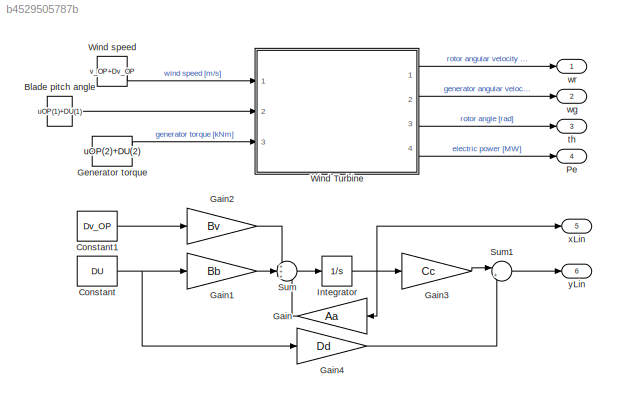
MODEL slx_b4529505787b
KIND model
CONFIG AbsTol = auto
CONFIG EnableMultiTasking = off
CONFIG FixedStep = STEP_SIZE
CONFIG MaxStep = Ts
CONFIG MinStep = auto
CONFIG RelTol = 1e-6
CONFIG SampleTimeConstraint = Unconstrained
CONFIG Solver = ode4
CONFIG SolverName = ode4
CONFIG StartTime = 0.0
CONFIG StopTime = TIME_SIM
BLOCK [Constant] Blade pitch angle
  Value = uOP(1)+DU(1)
BLOCK [Constant] Constant
  Value = DU
BLOCK [Constant] Constant1
  Value = Dv_OP
BLOCK [Gain] Gain
  Gain = Aa
  Multiplication = Matrix(K*u) (u vector)
  OutDataTypeStr = Inherit: Inherit via internal rule
  ParamDataTypeStr = Inherit: Inherit via internal rule
  SaturateOnIntegerOverflow = off
BLOCK [Gain] Gain1
  Gain = Bb
  Multiplication = Matrix(K*u) (u vector)
  OutDataTypeStr = Inherit: Inherit via internal rule
  ParamDataTypeStr = Inherit: Inherit via internal rule
  SaturateOnIntegerOverflow = off
BLOCK [Gain] Gain2
  Gain = Bv
  Multiplication = Matrix(K*u) (u vector)
  OutDataTypeStr = Inherit: Inherit via internal rule
  ParamDataTypeStr = Inherit: Inherit via internal rule
  SaturateOnIntegerOverflow = off
BLOCK [Gain] Gain3
  Gain = Cc
  Multiplication = Matrix(K*u) (u vector)
  OutDataTypeStr = Inherit: Inherit via internal rule
  ParamDataTypeStr = Inherit: Inherit via internal rule
  SaturateOnIntegerOverflow = off
BLOCK [Gain] Gain4
  Gain = Dd
  Multiplication = Matrix(K*u) (u vector)
  OutDataTypeStr = Inherit: Inherit via internal rule
  ParamDataTypeStr = Inherit: Inherit via internal rule
  SaturateOnIntegerOverflow = off
BLOCK [Constant] Generator torque
  Value = uOP(2)+DU(2)
BLOCK [Integrator] Integrator
  Ports = [1, 1]
BLOCK [Outport] Pe
  IconDisplay = Port number
  Port = 4
BLOCK [Sum] Sum
  IconShape = round
  InputSameDT = off
  Inputs = +++
  OutDataTypeStr = Inherit: Inherit via internal rule
  Ports = [3, 1]
  SaturateOnIntegerOverflow = off
BLOCK [Sum] Sum1
  IconShape = round
  InputSameDT = off
  Inputs = |++
  OutDataTypeStr = Inherit: Inherit via internal rule
  Ports = [2, 1]
  SaturateOnIntegerOverflow = off
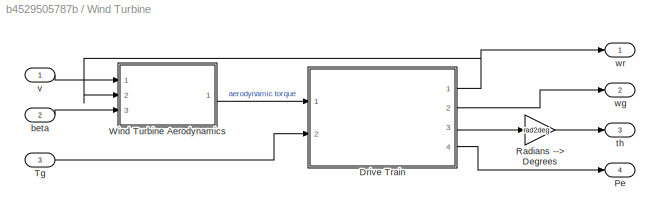
BLOCK [SubSystem] Wind Turbine
  Ports = [3, 4]
  RequestExecContextInheritance = off
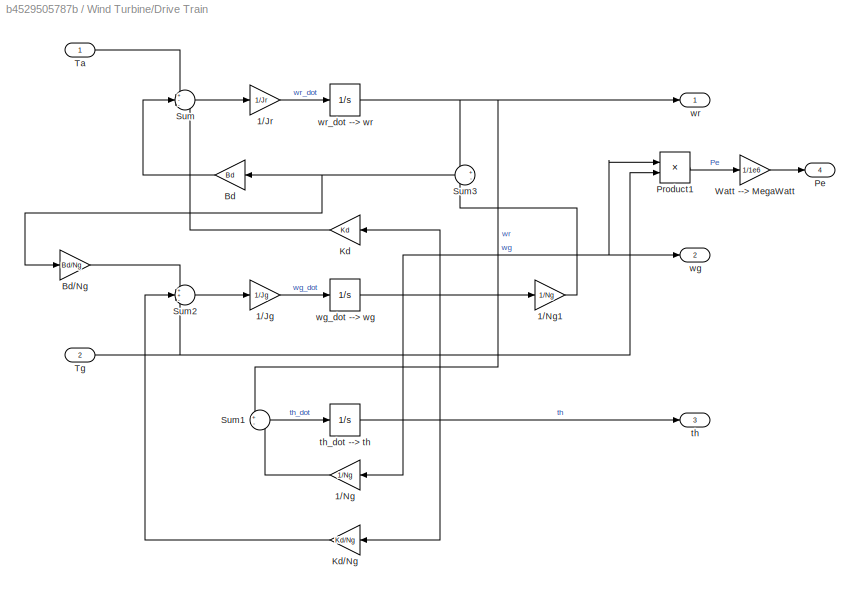
BLOCK [SubSystem] Wind Turbine/Drive Train
  Ports = [2, 4]
  RequestExecContextInheritance = off
BLOCK [Gain] Wind Turbine/Drive Train/1//Jg
  Gain = 1/Jg
  OutDataTypeStr = Inherit: Inherit via internal rule
  ParamDataTypeStr = Inherit: Inherit via internal rule
  SaturateOnIntegerOverflow = off
BLOCK [Gain] Wind Turbine/Drive Train/1//Jr
  Gain = 1/Jr
  OutDataTypeStr = Inherit: Inherit via internal rule
  ParamDataTypeStr = Inherit: Inherit via internal rule
  SaturateOnIntegerOverflow = off
BLOCK [Gain] Wind Turbine/Drive Train/1//Ng
  Gain = 1/Ng
  OutDataTypeStr = Inherit: Inherit via internal rule
  ParamDataTypeStr = Inherit: Inherit via internal rule
  SaturateOnIntegerOverflow = off
BLOCK [Gain] Wind Turbine/Drive Train/1//Ng1
  Gain = 1/Ng
  OutDataTypeStr = Inherit: Inherit via internal rule
  ParamDataTypeStr = Inherit: Inherit via internal rule
  SaturateOnIntegerOverflow = off
BLOCK [Gain] Wind Turbine/Drive Train/Bd
  Gain = Bd
  OutDataTypeStr = Inherit: Inherit via internal rule
  ParamDataTypeStr = Inherit: Inherit via internal rule
  SaturateOnIntegerOverflow = off
BLOCK [Gain] Wind Turbine/Drive Train/Bd//Ng
  Gain = Bd/Ng
  OutDataTypeStr = Inherit: Inherit via internal rule
  ParamDataTypeStr = Inherit: Inherit via internal rule
  SaturateOnIntegerOverflow = off
BLOCK [Gain] Wind Turbine/Drive Train/Kd
  Gain = Kd
  OutDataTypeStr = Inherit: Inherit via internal rule
  ParamDataTypeStr = Inherit: Inherit via internal rule
  SaturateOnIntegerOverflow = off
BLOCK [Gain] Wind Turbine/Drive Train/Kd//Ng
  Gain = Kd/Ng
  OutDataTypeStr = Inherit: Inherit via internal rule
  ParamDataTypeStr = Inherit: Inherit via internal rule
  SaturateOnIntegerOverflow = off
BLOCK [Outport] Wind Turbine/Drive Train/Pe
  IconDisplay = Port number
  Port = 4
BLOCK [Product] Wind Turbine/Drive Train/Product1
  InputSameDT = off
  OutDataTypeStr = Inherit: Inherit via internal rule
  Ports = [2, 1]
  RndMeth = Floor
  SaturateOnIntegerOverflow = off
BLOCK [Sum] Wind Turbine/Drive Train/Sum
  IconShape = round
  InputSameDT = off
  Inputs = +--
  OutDataTypeStr = Inherit: Inherit via internal rule
  Ports = [3, 1]
  SaturateOnIntegerOverflow = off
BLOCK [Sum] Wind Turbine/Drive Train/Sum1
  IconShape = round
  InputSameDT = off
  Inputs = +-
  OutDataTypeStr = Inherit: Inherit via internal rule
  Ports = [2, 1]
  SaturateOnIntegerOverflow = off
BLOCK [Sum] Wind Turbine/Drive Train/Sum2
  IconShape = round
  InputSameDT = off
  Inputs = ++-
  OutDataTypeStr = Inherit: Inherit via internal rule
  Ports = [3, 1]
  SaturateOnIntegerOverflow = off
BLOCK [Sum] Wind Turbine/Drive Train/Sum3
  IconShape = round
  InputSameDT = off
  Inputs = +-
  OutDataTypeStr = Inherit: Inherit via internal rule
  Ports = [2, 1]
  SaturateOnIntegerOverflow = off
BLOCK [Inport] Wind Turbine/Drive Train/Ta
  IconDisplay = Port number
BLOCK [Inport] Wind Turbine/Drive Train/Tg
  IconDisplay = Port number
  Port = 2
BLOCK [Gain] Wind Turbine/Drive Train/Watt --> MegaWatt
  Gain = 1/1e6
  OutDataTypeStr = Inherit: Inherit via internal rule
  ParamDataTypeStr = Inherit: Inherit via internal rule
  SaturateOnIntegerOverflow = off
BLOCK [Outport] Wind Turbine/Drive Train/th
  IconDisplay = Port number
  Port = 3
BLOCK [Integrator] Wind Turbine/Drive Train/th_dot --> th
  InitialCondition = x0(3)
  LowerSaturationLimit = 0
  Ports = [1, 1]
  Priority = 3
BLOCK [Outport] Wind Turbine/Drive Train/wg
  IconDisplay = Port number
  Port = 2
BLOCK [Integrator] Wind Turbine/Drive Train/wg_dot --> wg
  InitialCondition = x0(2)
  LowerSaturationLimit = 0
  Ports = [1, 1]
  Priority = 2
BLOCK [Outport] Wind Turbine/Drive Train/wr
  IconDisplay = Port number
BLOCK [Integrator] Wind Turbine/Drive Train/wr_dot --> wr
  InitialCondition = x0(1)
  LowerSaturationLimit = 0
  Ports = [1, 1]
  Priority = 1
BLOCK [Outport] Wind Turbine/Pe
  IconDisplay = Port number
  Port = 4
BLOCK [Gain] Wind Turbine/Radians --> Degrees
  Gain = rad2deg
  OutDataTypeStr = Inherit: Inherit via internal rule
  ParamDataTypeStr = Inherit: Inherit via internal rule
  SaturateOnIntegerOverflow = off
BLOCK [Inport] Wind Turbine/Tg
  IconDisplay = Port number
  Port = 3
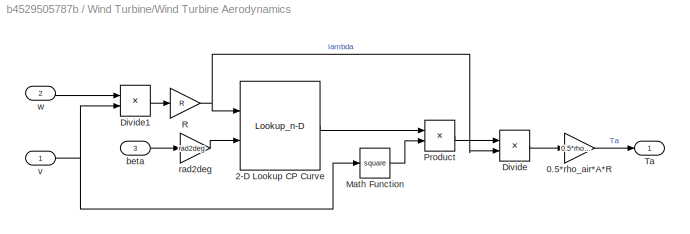
BLOCK [SubSystem] Wind Turbine/Wind Turbine Aerodynamics
  Ports = [3, 1]
  RequestExecContextInheritance = off
BLOCK [Gain] Wind Turbine/Wind Turbine Aerodynamics/0.5*rho_air*A*R
  Gain = 0.5*rho_air*A*R
  OutDataTypeStr = Inherit: Inherit via internal rule
  ParamDataTypeStr = Inherit: Inherit via internal rule
  SaturateOnIntegerOverflow = off
BLOCK [Lookup_n-D] Wind Turbine/Wind Turbine Aerodynamics/2-D Lookup CP Curve
  BreakpointsForDimension1 = Lambda0
  BreakpointsForDimension2 = Pitch0
  BreakpointsForDimension3 = CP0'
  DiagnosticForOutOfRangeInput = Warning
  Ports = [2, 1]
  RndMeth = Simplest
  Table = CP0
BLOCK [Product] Wind Turbine/Wind Turbine Aerodynamics/Divide
  InputSameDT = off
  Inputs = */
  OutDataTypeStr = Inherit: Inherit via internal rule
  Ports = [2, 1]
  RndMeth = Floor
  SaturateOnIntegerOverflow = off
BLOCK [Product] Wind Turbine/Wind Turbine Aerodynamics/Divide1
  InputSameDT = off
  Inputs = */
  OutDataTypeStr = Inherit: Inherit via internal rule
  Ports = [2, 1]
  RndMeth = Floor
  SaturateOnIntegerOverflow = off
BLOCK [Math] Wind Turbine/Wind Turbine Aerodynamics/Math Function
  Operator = square
  Ports = [1, 1]
BLOCK [Product] Wind Turbine/Wind Turbine Aerodynamics/Product
  InputSameDT = off
  OutDataTypeStr = Inherit: Inherit via internal rule
  Ports = [2, 1]
  RndMeth = Floor
  SaturateOnIntegerOverflow = off
BLOCK [Gain] Wind Turbine/Wind Turbine Aerodynamics/R
  Gain = R
  OutDataTypeStr = Inherit: Inherit via internal rule
  ParamDataTypeStr = Inherit: Inherit via internal rule
  SaturateOnIntegerOverflow = off
BLOCK [Outport] Wind Turbine/Wind Turbine Aerodynamics/Ta
  IconDisplay = Port number
BLOCK [Inport] Wind Turbine/Wind Turbine Aerodynamics/beta
  IconDisplay = Port number
  Port = 3
BLOCK [Gain] Wind Turbine/Wind Turbine Aerodynamics/rad2deg
  Gain = rad2deg
  OutDataTypeStr = Inherit: Inherit via internal rule
  ParamDataTypeStr = Inherit: Inherit via internal rule
  SaturateOnIntegerOverflow = off
BLOCK [Inport] Wind Turbine/Wind Turbine Aerodynamics/v
  IconDisplay = Port number
BLOCK [Inport] Wind Turbine/Wind Turbine Aerodynamics/w
  IconDisplay = Port number
  Port = 2
BLOCK [Inport] Wind Turbine/beta
  IconDisplay = Port number
  Port = 2
BLOCK [Outport] Wind Turbine/th
  IconDisplay = Port number
  Port = 3
BLOCK [Inport] Wind Turbine/v
  IconDisplay = Port number
BLOCK [Outport] Wind Turbine/wg
  IconDisplay = Port number
  Port = 2
BLOCK [Outport] Wind Turbine/wr
  IconDisplay = Port number
BLOCK [Constant] Wind speed
  Value = v_OP+Dv_OP
BLOCK [Outport] th
  IconDisplay = Port number
  Port = 3
BLOCK [Outport] wg
  IconDisplay = Port number
  Port = 2
BLOCK [Outport] wr
  IconDisplay = Port number
BLOCK [Outport] xLin
  IconDisplay = Port number
  Port = 5
BLOCK [Outport] yLin
  IconDisplay = Port number
  Port = 6
LINE Blade pitch angle:1 -> Wind Turbine:2
LINE Constant1:1 -> Gain2:1
NET Constant:1 -> Gain1:1, Gain4:1
LINE Gain1:1 -> Sum:2
LINE Gain2:1 -> Sum:1
LINE Gain3:1 -> Sum1:1
LINE Gain4:1 -> Sum1:2
LINE Gain:1 -> Sum:3
LINE Generator torque:1 -> Wind Turbine:3
NET Integrator:1 -> Gain3:1, Gain:1, xLin:1
LINE Sum1:1 -> yLin:1
LINE Sum:1 -> Integrator:1
LINE Wind Turbine/Drive Train/1//Jg:1 -> Wind Turbine/Drive Train/wg_dot --> wg:1
LINE Wind Turbine/Drive Train/1//Jr:1 -> Wind Turbine/Drive Train/wr_dot --> wr:1
LINE Wind Turbine/Drive Train/1//Ng1:1 -> Wind Turbine/Drive Train/Sum3:2
LINE Wind Turbine/Drive Train/1//Ng:1 -> Wind Turbine/Drive Train/Sum1:2
LINE Wind Turbine/Drive Train/Bd//Ng:1 -> Wind Turbine/Drive Train/Sum2:1
LINE Wind Turbine/Drive Train/Bd:1 -> Wind Turbine/Drive Train/Sum:2
LINE Wind Turbine/Drive Train/Kd//Ng:1 -> Wind Turbine/Drive Train/Sum2:2
LINE Wind Turbine/Drive Train/Kd:1 -> Wind Turbine/Drive Train/Sum:3
LINE Wind Turbine/Drive Train/Product1:1 -> Wind Turbine/Drive Train/Watt --> MegaWatt:1
LINE Wind Turbine/Drive Train/Sum1:1 -> Wind Turbine/Drive Train/th_dot --> th:1
LINE Wind Turbine/Drive Train/Sum2:1 -> Wind Turbine/Drive Train/1//Jg:1
NET Wind Turbine/Drive Train/Sum3:1 -> Wind Turbine/Drive Train/Bd//Ng:1, Wind Turbine/Drive Train/Bd:1
LINE Wind Turbine/Drive Train/Sum:1 -> Wind Turbine/Drive Train/1//Jr:1
LINE Wind Turbine/Drive Train/Ta:1 -> Wind Turbine/Drive Train/Sum:1
NET Wind Turbine/Drive Train/Tg:1 -> Wind Turbine/Drive Train/Product1:2, Wind Turbine/Drive Train/Sum2:3
LINE Wind Turbine/Drive Train/Watt --> MegaWatt:1 -> Wind Turbine/Drive Train/Pe:1
NET Wind Turbine/Drive Train/th_dot --> th:1 -> Wind Turbine/Drive Train/Kd//Ng:1, Wind Turbine/Drive Train/Kd:1, Wind Turbine/Drive Train/th:1
NET Wind Turbine/Drive Train/wg_dot --> wg:1 -> Wind Turbine/Drive Train/1//Ng1:1, Wind Turbine/Drive Train/1//Ng:1, Wind Turbine/Drive Train/Product1:1, Wind Turbine/Drive Train/wg:1
NET Wind Turbine/Drive Train/wr_dot --> wr:1 -> Wind Turbine/Drive Train/Sum1:1, Wind Turbine/Drive Train/Sum3:1, Wind Turbine/Drive Train/wr:1
NET Wind Turbine/Drive Train:1 -> Wind Turbine/Wind Turbine Aerodynamics:2, Wind Turbine/wr:1
LINE Wind Turbine/Drive Train:2 -> Wind Turbine/wg:1
LINE Wind Turbine/Drive Train:3 -> Wind Turbine/Radians --> Degrees:1
LINE Wind Turbine/Drive Train:4 -> Wind Turbine/Pe:1
LINE Wind Turbine/Radians --> Degrees:1 -> Wind Turbine/th:1
LINE Wind Turbine/Tg:1 -> Wind Turbine/Drive Train:2
LINE Wind Turbine/Wind Turbine Aerodynamics/0.5*rho_air*A*R:1 -> Wind Turbine/Wind Turbine Aerodynamics/Ta:1
LINE Wind Turbine/Wind Turbine Aerodynamics/2-D Lookup CP Curve:1 -> Wind Turbine/Wind Turbine Aerodynamics/Product:1
LINE Wind Turbine/Wind Turbine Aerodynamics/Divide1:1 -> Wind Turbine/Wind Turbine Aerodynamics/R:1
LINE Wind Turbine/Wind Turbine Aerodynamics/Divide:1 -> Wind Turbine/Wind Turbine Aerodynamics/0.5*rho_air*A*R:1
LINE Wind Turbine/Wind Turbine Aerodynamics/Math Function:1 -> Wind Turbine/Wind Turbine Aerodynamics/Product:2
LINE Wind Turbine/Wind Turbine Aerodynamics/Product:1 -> Wind Turbine/Wind Turbine Aerodynamics/Divide:1
NET Wind Turbine/Wind Turbine Aerodynamics/R:1 -> Wind Turbine/Wind Turbine Aerodynamics/2-D Lookup CP Curve:1, Wind Turbine/Wind Turbine Aerodynamics/Divide:2
LINE Wind Turbine/Wind Turbine Aerodynamics/beta:1 -> Wind Turbine/Wind Turbine Aerodynamics/rad2deg:1
LINE Wind Turbine/Wind Turbine Aerodynamics/rad2deg:1 -> Wind Turbine/Wind Turbine Aerodynamics/2-D Lookup CP Curve:2
NET Wind Turbine/Wind Turbine Aerodynamics/v:1 -> Wind Turbine/Wind Turbine Aerodynamics/Divide1:2, Wind Turbine/Wind Turbine Aerodynamics/Math Function:1
LINE Wind Turbine/Wind Turbine Aerodynamics/w:1 -> Wind Turbine/Wind Turbine Aerodynamics/Divide1:1
LINE Wind Turbine/Wind Turbine Aerodynamics:1 -> Wind Turbine/Drive Train:1
LINE Wind Turbine/beta:1 -> Wind Turbine/Wind Turbine Aerodynamics:3
LINE Wind Turbine/v:1 -> Wind Turbine/Wind Turbine Aerodynamics:1
LINE Wind Turbine:1 -> wr:1
LINE Wind Turbine:2 -> wg:1
LINE Wind Turbine:3 -> th:1
LINE Wind Turbine:4 -> Pe:1
LINE Wind speed:1 -> Wind Turbine:1
note: NET lines group one-source signal fan-out (src -> all destinations, sorted); 1:1 wires keep LINE
